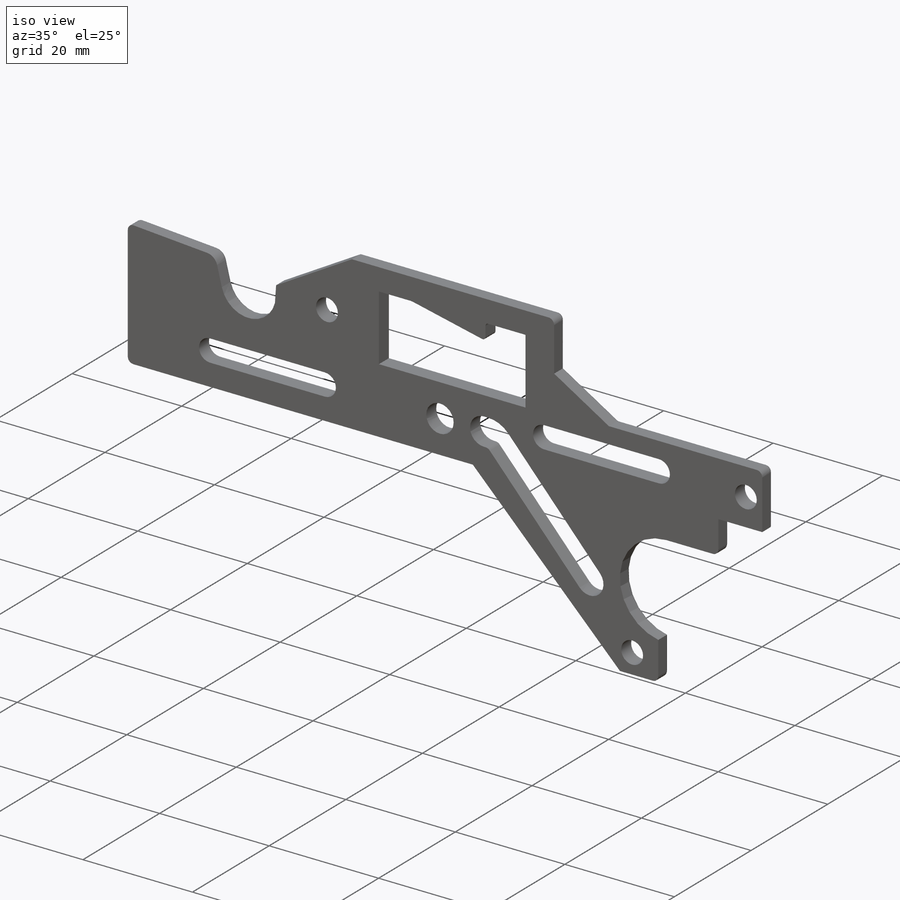
[diagram: iso view]
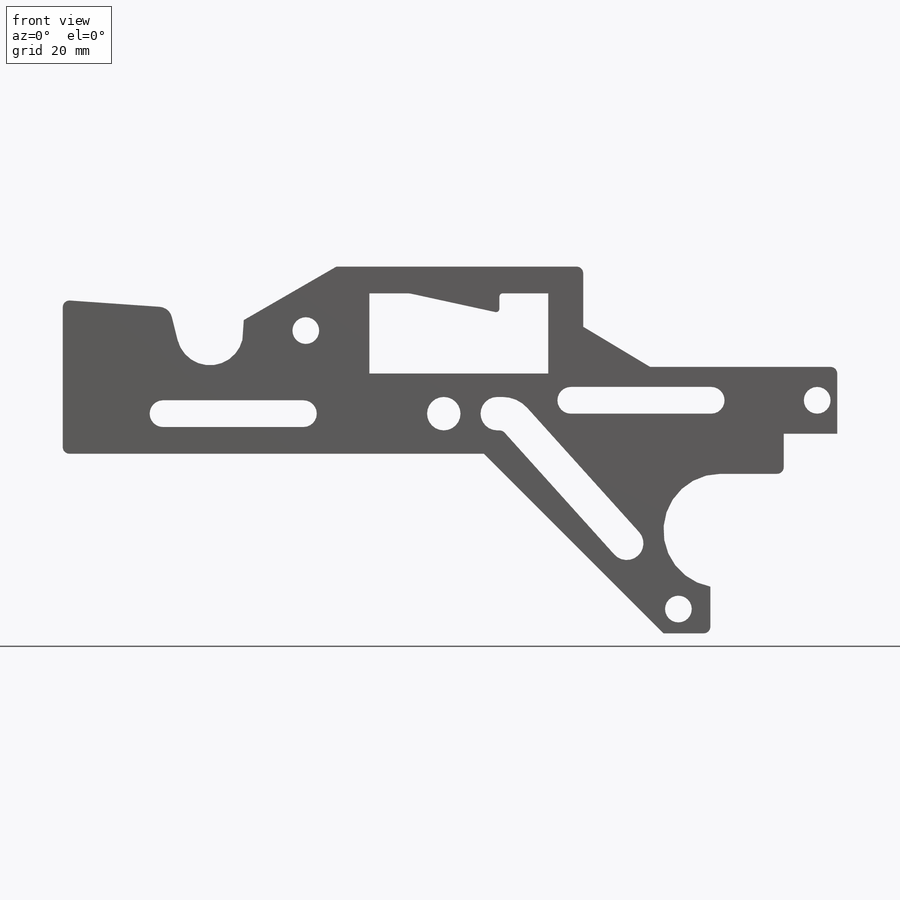
[diagram: front view]
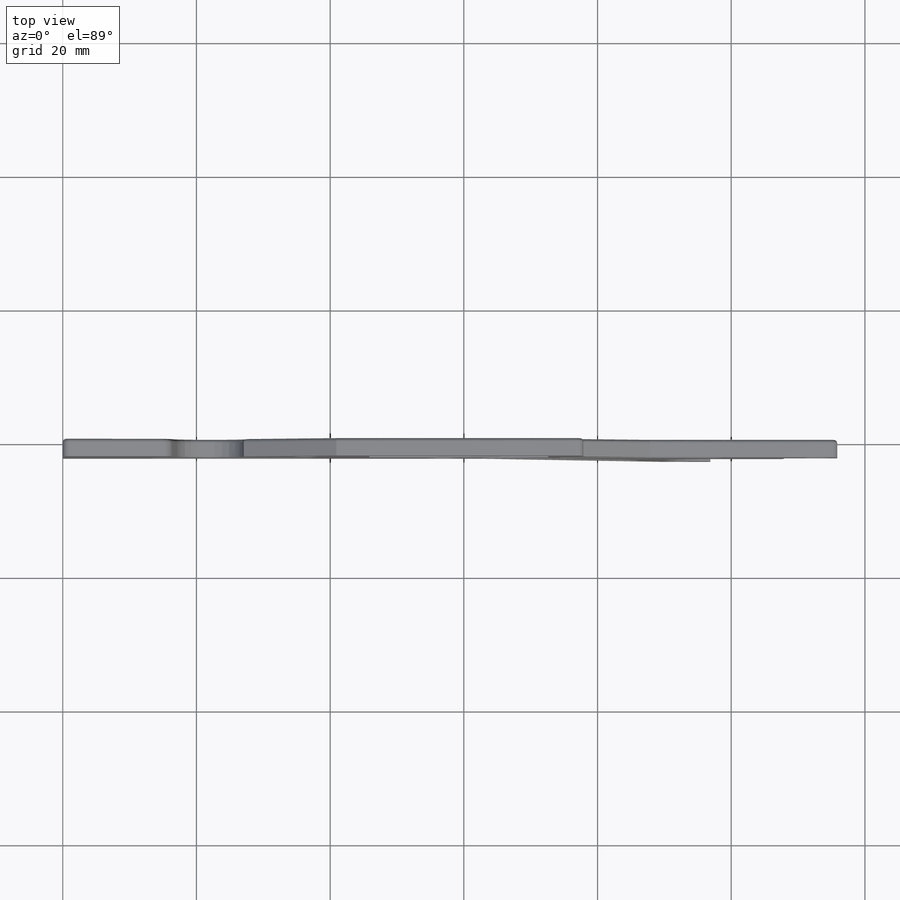
[diagram: top view]
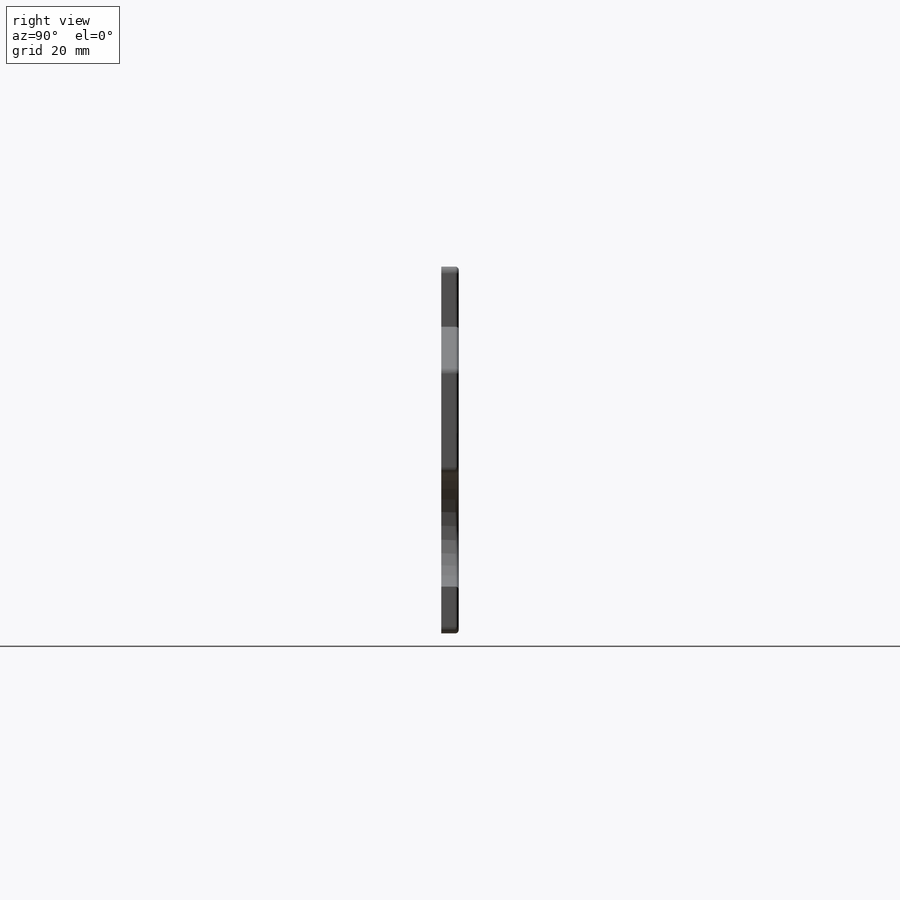
[diagram: right view]
SOLIDWORKS PART (.sldprt)
format: sldprt  version: not decoded by parser v0  size: 489,984 bytes
history: native  units: mm
features: sketch x7, cut_extrude x6, plane x3, fillet x2, material x1, extrude x1 (+12 scaffold rows collapsed)
feature tree (32):
  scaffold x12  (default folders/planes/origin — collapsed)
  material  "Matériau <non spécifié>"
  plane  "Face"
  plane  "Dessus"
  plane  "Droite"
  sketch  "Esquisse1"  dims[c1.D7=8.5mm c1.D26=5.0mm c1.D25=2.0mm c1.D1=23.0mm c1.D2=76.0mm c1.D3=29.0mm c1.D4=10.0mm c1.D5=8.0mm c1.D6=6.0mm c1.D8=63.01mm c1.D9=38.0mm c1.D10=9.0mm c1.D11=~6.277488mm c2.D3=115.86mm c2.D10=10.0mm c2.D11=6.0mm c2.D12=15.0mm c2.D13=62.0mm c3.D13=135.0deg c3.D14=~26.870058mm c4.D14=135.0deg c5.D14=~15.132097mm c6.D14=90.0deg c6.D15=7.0mm c6.D16=7.0mm c6.D17=~12.419626mm c7.D17=150.0deg c7.D18=16.0mm c7.D19=16.0mm c7.D20=28.0mm c8.D20=86.0deg c8.D21=~14.148064mm c9.D21=105.0deg c9.D22=~7.281906mm c10.D22=124.0deg c11.D22=7.0mm c11.D23=28.0mm c11.D24=~5.983697mm c12.D24=124.0deg c13.D24=77.86mm c13.D25=~5.983697mm c14.D25=124.0deg c15.D25=6.0mm c15.D27=~5.983697mm c16.D27=124.0deg c17.D27=~39.35928mm c17.D18=35.0mm c17.D19=16.0mm c18.D27=16.0mm c18.D21=16.0mm c19.D27=16.0mm c20.D27=110.0deg c20.D25=16.0mm c21.D25=110.0deg c21.D26=~5.820375mm c22.D26=124.0deg c22.D27=38.0mm c22.D10=10.0mm c23.D27=28.0mm c23.D18=~37.947093mm c23.D22=5.0mm c23.D25=8.0mm c24.D25=~98.204005deg c25.D25=~7.978475mm c26.D25=~91.502067deg c26.D18=~14.963461mm c27.D18=108.0deg]
  extrude  "Extrusion1"  Depth=2.6mm
  sketch  "Esquisse2"  dims[D1=21.0mm D2=4.0mm D3=4.0mm D4=15.0mm]
  cut_extrude  "Enlèv. mat.-Extru.1"  [1 undecoded]
  sketch  "Esquisse3"  dims[c1.D1=4.0mm c1.D2=21.0mm c1.D3=4.0mm c1.D4=61.0mm c1.D5=~23.644163mm c2.D3=3.0mm]
  cut_extrude  "Enlèv. mat.-Extru.2"  [1 undecoded]
  sketch  "Esquisse4"  dims[c1.D8=0.5mm c1.D9=2.0mm c1.D10=0.5mm c2.D8=0.5mm c2.D1=12.0mm c2.D2=16.0mm c2.D3=26.76mm c2.D4=32.0mm c2.D5=7.0mm c2.D6=6.0mm c2.D7=3.0mm c3.D6=~2.085919mm c4.D6=~12.299343deg c4.D5=7.3mm]
  cut_extrude  "Enlèv. mat.-Extru.3"  [1 undecoded]
  sketch  "Esquisse5"  dims[c1.D7=~2.133883mm c1.D3=2.5mm c1.D4=2.5mm c2.D3=2.5mm c2.D6=2.0mm c2.D1=5.0mm c2.D2=1.0mm c3.D1=5.0mm c3.D2=25.0mm c3.D3=4.0mm c3.D4=3.65mm c3.D5=2.35mm c3.D6=29.0mm c3.D7=~28.665942mm c4.D6=~4.128363mm c4.D7=~12.607612mm c4.D4=~9.647612mm c5.D7=~4.128363mm c5.D4=29.0mm c5.D5=5.0mm c6.D7=~18.409903mm c7.D7=45.0deg c7.D1=~2.155835mm c8.D1=135.0deg c9.D1=~4.226903mm c10.D1=135.0deg c10.D6=~0.345669mm c11.D6=132.0deg]
  cut_extrude  "Enlèv. mat.-Extru.4"  [1 undecoded]
  sketch  "Esquisse6"  dims[c1.D1=4.0mm c1.D2=4.0mm c1.D3=4.0mm c1.D6=75.0mm c1.D7=139.0mm c1.D8=140.0mm c1.D4=~6.466909mm c1.D5=~3.533091mm c2.D4=3.0mm c2.D5=6.0mm c2.D8=9.5mm]
  cut_extrude  "Enlèv. mat.-Extru.5"  [1 undecoded]
  sketch  "Esquisse7"  dims[c1.D1=5.0mm c1.D2=45.0mm c1.D3=112.0mm c1.D4=111.0mm c2.D2=8.0mm]
  cut_extrude  "Enlèv. mat.-Extru.6"  [1 undecoded]
  fillet  "Congé1"  Radius=0.5mm
  fillet  "Congé2"  Radius=1mm
decode coverage: 10 of 16 modeling features carry decoded parameters
note: ~ marks probable driven/reference dimensions
note: 6 parameter values undecoded
summary: no parameter record found for 6 features
note: suppression state not decoded; provenance and decode notes live in map.json
